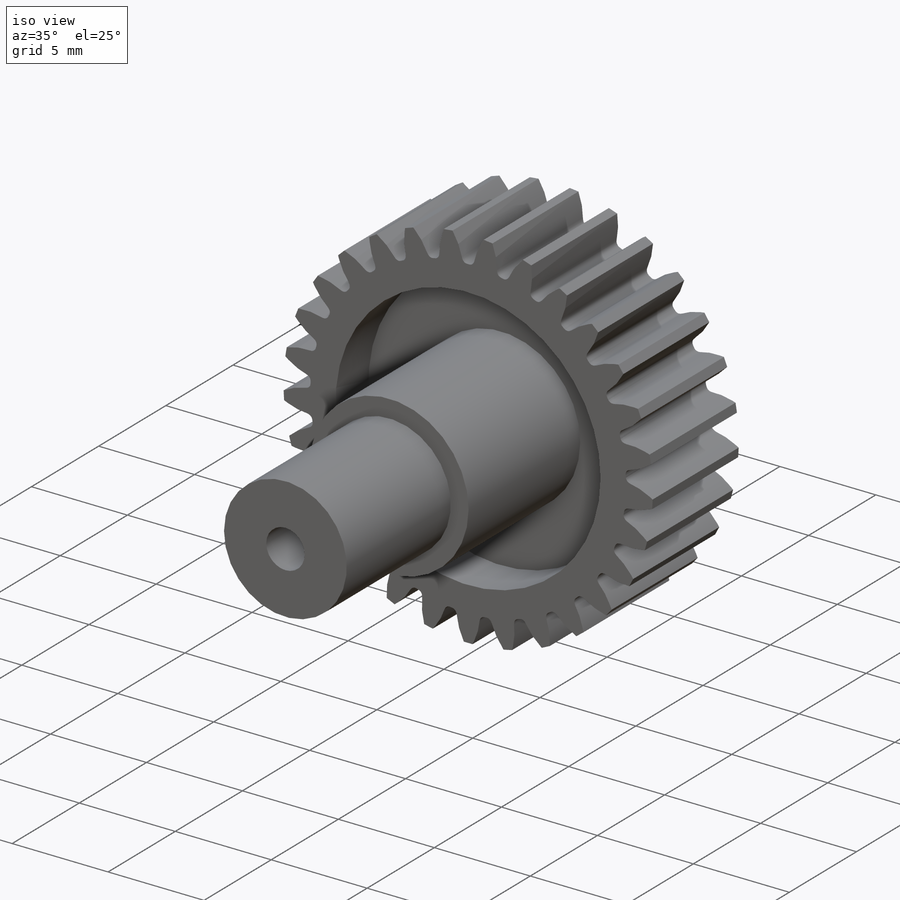
[diagram: iso view]
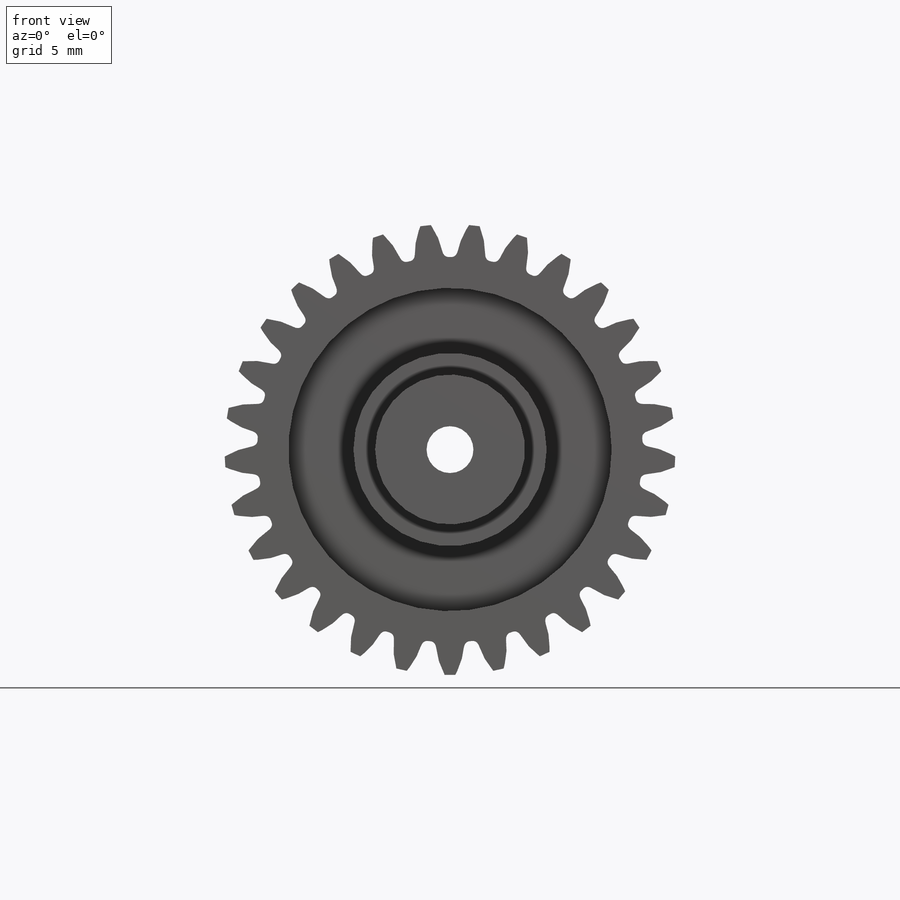
[diagram: front view]
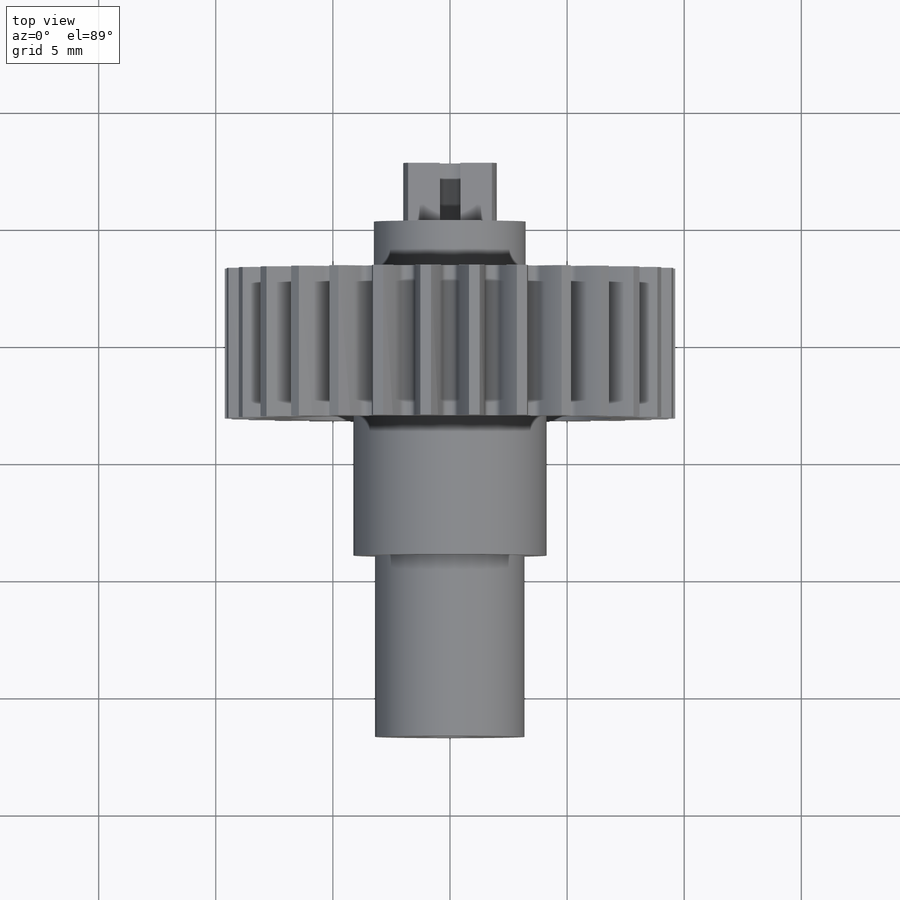
[diagram: top view]
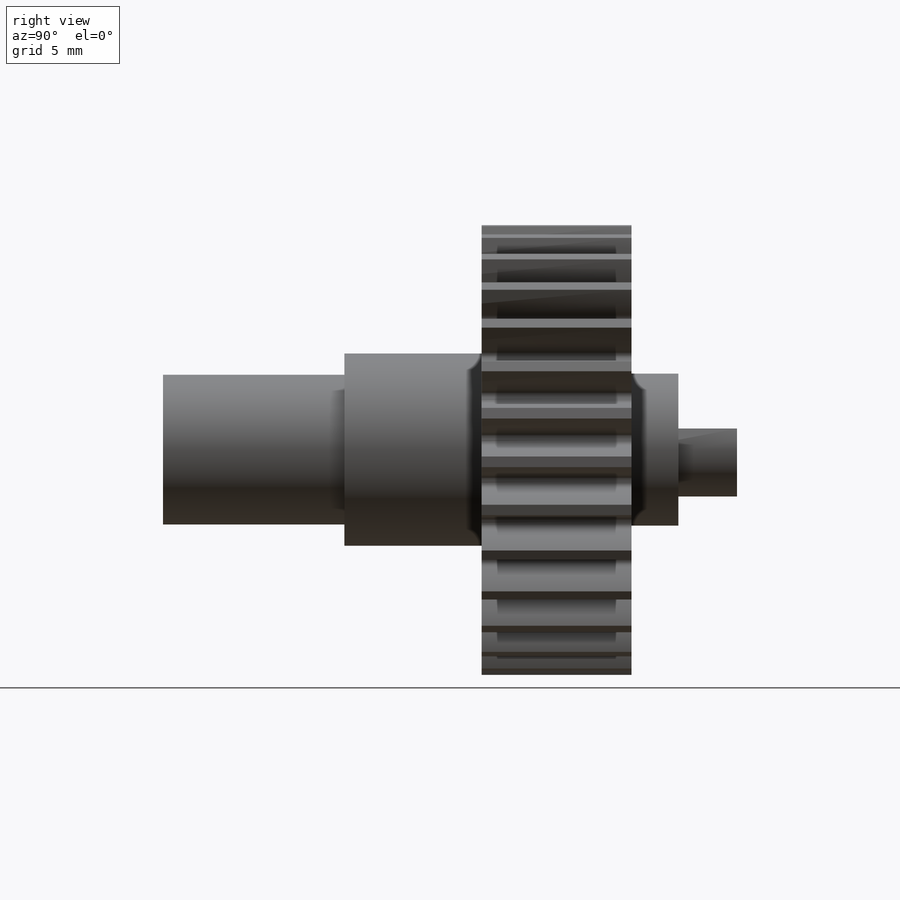
[diagram: right view]
SOLIDWORKS PART (.sldprt)
format: sldprt  version: not decoded by parser v0  size: 367,616 bytes
history: native  units: mm
features: sketch x6, cut_extrude x3, extrude x2, material x1, pattern_circular x1, revolve x1 (+16 scaffold rows collapsed)
feature tree (30):
  scaffold x16  (default folders/planes/origin — collapsed)
  material  "Material <not specified>"
  sketch  "Gear-BaseSketch"  dims[D1=~19.241719mm]
  extrude  "0.6207 Module, 18.0003mm P.D."  Depth=6.4mm
  sketch  "Tooth-Sketch; Backlash: 0.0000mm"
  cut_extrude  "Tooth-Cut, Coarse Pitch Involute 20 deg"  Depth=10mm
  pattern_circular  "Tooth Pattern, 29 / 29"  Count=29 Angle=12.413793deg
  sketch  "Sketch3"  dims[D1=13.8mm]
  cut_extrude  "Cut-Extrude5"  [1 undecoded]
  sketch  "Sketch4"  dims[D1=3.25mm D2=2.45mm D3=2.45mm D4=2.0mm D5=4.125mm D6=3.2mm D7=12.26mm D8=20.0mm]
  revolve  "Revolve1"  Angle=360deg
  sketch  "Sketch5"  dims[D1=2.0mm]
  cut_extrude  "Cut-Extrude6"  [1 undecoded]
  sketch  "Sketch6"  dims[c1.D3=1.0mm c1.D2=~1.324834mm c2.D2=60.0deg c3.D2=~1.738505mm c4.D2=60.0deg c5.D2=0.9mm c5.D1=1.0mm]
  extrude  "Boss-Extrude2"  Depth=2.5mm
decode coverage: 10 of 13 modeling features carry decoded parameters
note: ~ marks probable driven/reference dimensions
note: 2 parameter values undecoded
note: suppression state not decoded; provenance and decode notes live in map.json
